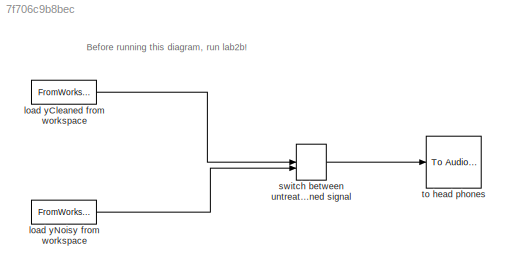
MODEL slx_7f706c9b8bec
KIND model
BLOCK [FromWorkspace] load yCleaned from workspace
  OutputAfterFinalValue = Setting to zero
  SampleTime = 0
  VariableName = yCleaned
  ZeroCross = on
BLOCK [FromWorkspace] load yNoisy from workspace
  OutputAfterFinalValue = Setting to zero
  SampleTime = 0
  VariableName = yNoisy
  ZeroCross = on
BLOCK [ManualSwitch] switch between untreated and cleaned signal
BLOCK [Reference] to head phones   REF=dspsnks4/To Audio
Device
  Ports = [1]
  SourceBlock = dspsnks4/To Audio\nDevice
  SourceType = To Audio Device
  autoBufferSize = on
  bufferSize = 4096
  defaultOutputChannelMapping = on
  deviceDatatype = Determine from input data type
  deviceName = FCA1616 Line 3/4 (3- Behringer FCA1616 WDM)
  inheritSampleRate = off
  outputChannelMapping = 1:2
  queueDuration = 0.1
  sampleRate = 1/sampletime
ANNOTATION (root): Before running this diagram, run lab2b!
LINE load yCleaned from workspace:1 -> switch between untreated and cleaned signal:1
LINE load yNoisy from workspace:1 -> switch between untreated and cleaned signal:2
LINE switch between untreated and cleaned signal:1 -> to head phones :1
